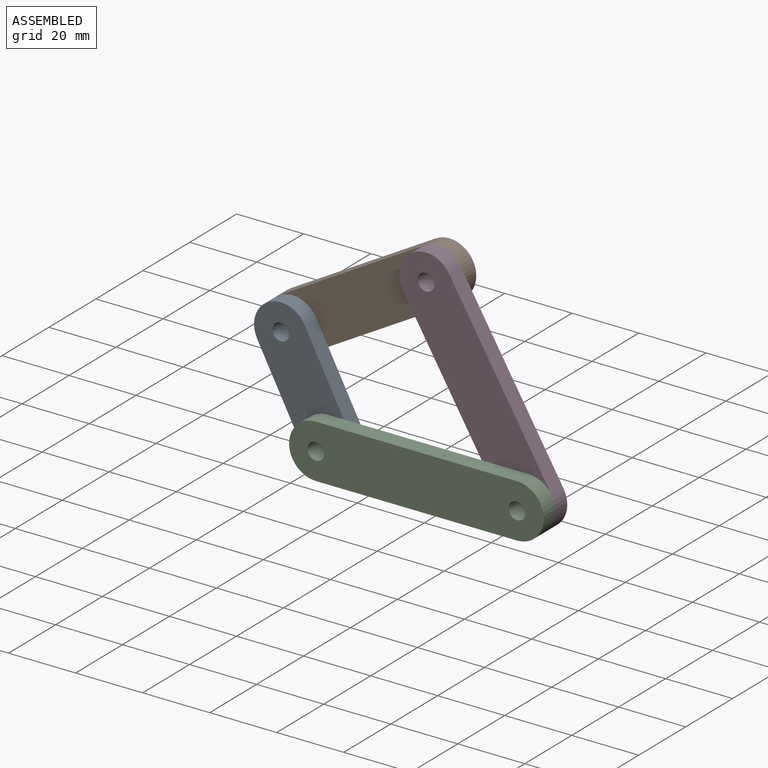
[diagram: assembled view]
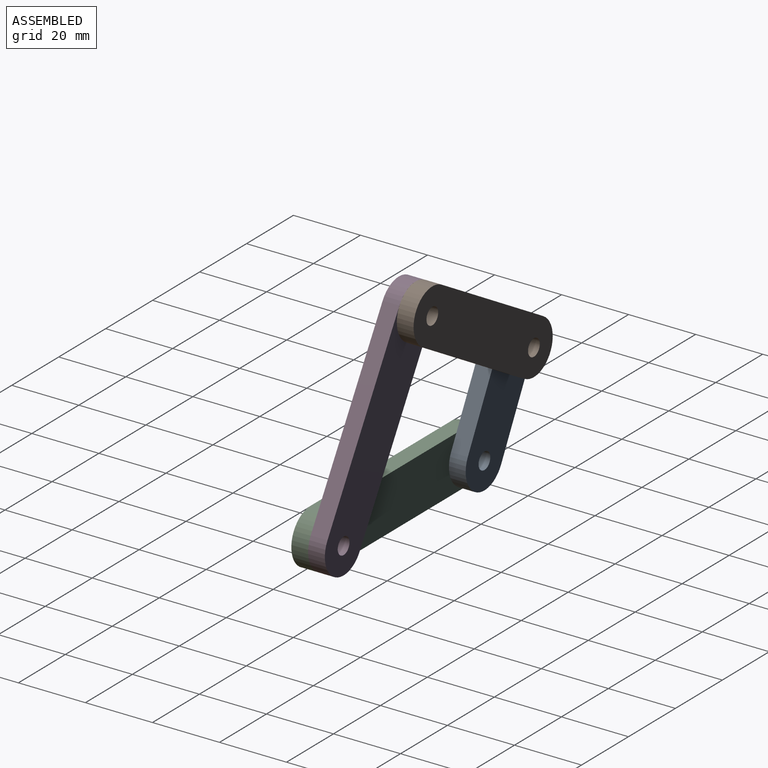
[diagram: assembled view, second angle]
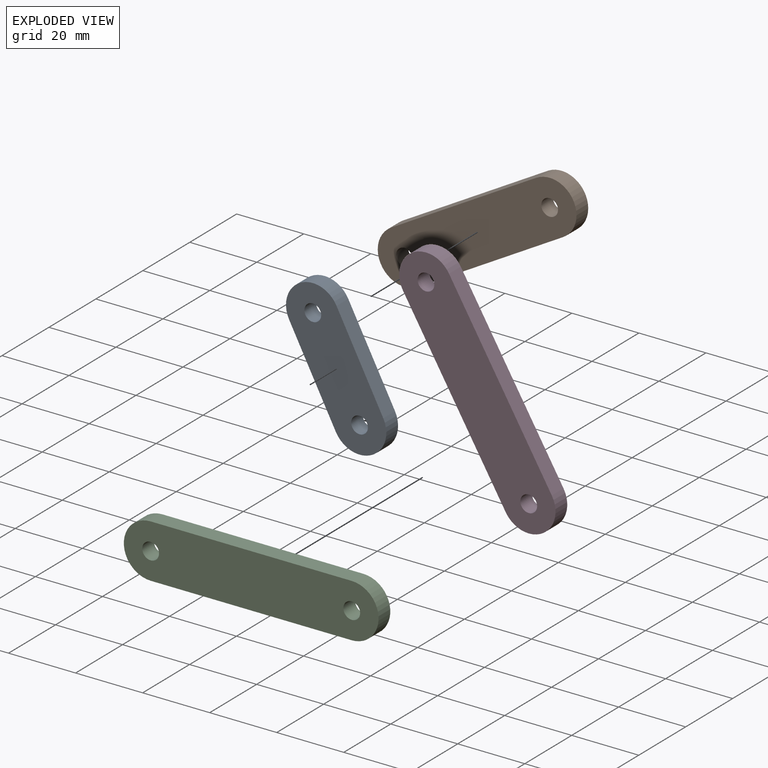
[diagram: exploded view]
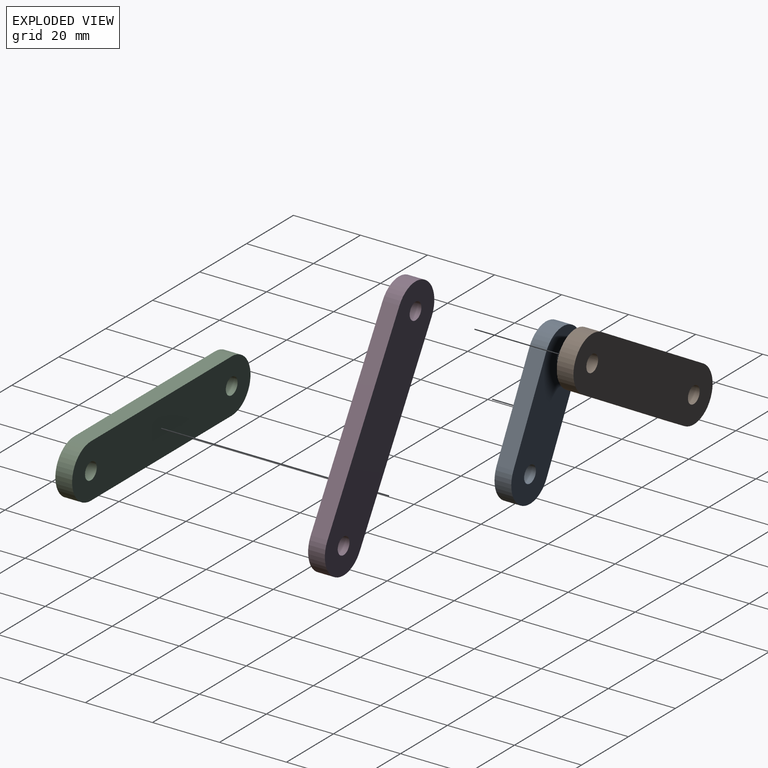
[diagram: exploded view, second angle]
ASSEMBLY  parts=4 mates=7
PART A: 8 faces, bbox 46x5x16 mm
  f0: cylinder r=8mm len=16mm, axis (0,1,0), area 125.7mm2, adj f1,f5,f6,f7
  f1: plane 30x5mm, normal (0,0,-1), area 150mm2, adj f0,f2,f6,f7
  f2: cylinder r=8mm len=16mm, axis (0,1,0), area 125.7mm2, adj f1,f5,f6,f7
  f3: cylinder r=2.5mm len=5mm, axis (0,1,0), area 78.5mm2, adj f6,f7
  f4: cylinder r=2.5mm len=5mm, axis (0,1,0), area 78.5mm2, adj f6,f7
  f5: plane 30x5mm, normal (0,0,1), area 150mm2, adj f0,f2,f6,f7
  f6: plane 46x16mm, normal (0,-1,0), area 641.8mm2, adj f0,f1,f2,f3,f4,f5
  f7: plane 46x16mm, normal (0,1,0), area 641.8mm2, adj f0,f1,f2,f3,f4,f5
PART B: 8 faces, bbox 66x5x16 mm
  f0: cylinder r=8mm len=16mm, axis (0,1,0), area 125.7mm2, adj f1,f5,f6,f7
  f1: plane 50x5mm, normal (0,0,-1), area 250mm2, adj f0,f2,f6,f7
  f2: cylinder r=8mm len=16mm, axis (0,1,0), area 125.7mm2, adj f1,f5,f6,f7
  f3: cylinder r=2.5mm len=5mm, axis (0,1,0), area 78.5mm2, adj f6,f7
  f4: cylinder r=2.5mm len=5mm, axis (0,1,0), area 78.5mm2, adj f6,f7
  f5: plane 50x5mm, normal (0,0,1), area 250mm2, adj f0,f2,f6,f7
  f6: plane 66x16mm, normal (0,-1,0), area 961.8mm2, adj f0,f1,f2,f3,f4,f5
  f7: plane 66x16mm, normal (0,1,0), area 961.8mm2, adj f0,f1,f2,f3,f4,f5
PART C: 8 faces, bbox 76x5x16 mm
  f0: cylinder r=8mm len=16mm, axis (0,1,0), area 125.7mm2, adj f1,f5,f6,f7
  f1: plane 60x5mm, normal (0,0,-1), area 300mm2, adj f0,f2,f6,f7
  f2: cylinder r=8mm len=16mm, axis (0,1,0), area 125.7mm2, adj f1,f5,f6,f7
  f3: cylinder r=2.5mm len=5mm, axis (0,1,0), area 78.5mm2, adj f6,f7
  f4: cylinder r=2.5mm len=5mm, axis (0,1,0), area 78.5mm2, adj f6,f7
  f5: plane 60x5mm, normal (0,0,1), area 300mm2, adj f0,f2,f6,f7
  f6: plane 76x16mm, normal (0,-1,0), area 1121.8mm2, adj f0,f1,f2,f3,f4,f5
  f7: plane 76x16mm, normal (0,1,0), area 1121.8mm2, adj f0,f1,f2,f3,f4,f5
PART D: same geometry as C
PLACE A rot(axis=(0,1,0),62.3deg) t=(-42.19,-8.39,24.74)mm
PLACE B rot(axis=(0,-1,0),30deg) t=(-29.03,-3.39,45.3)mm
PLACE C t=(-3.46,-13.39,8.12)mm fixed
PLACE D rot(axis=(0,1,0),59.3deg) t=(11.21,-8.39,33.91)mm
MATE planar A.f6 <-> C.f7  axis (0,-1,0) through (-40.43,-13.39,21.4)mm
MATE planar B.f2 <-> D.f7  axis (0,-1,0) through (-4.11,-8.39,59.7)mm
MATE planar B.f6 <-> A.f7  axis (0,-1,0) through (-25.76,-8.39,47.19)mm
MATE cylindrical A.f2 <-> C.f0  axis (0,-1,0) through (-33.46,-13.39,8.12)mm
MATE cylindrical B.f0 <-> A.f0  axis (0,-1,0) through (-47.4,-8.39,34.68)mm
MATE cylindrical D.f2 <-> C.f2  axis (0,-1,0) through (26.54,-13.39,8.12)mm
MATE cylindrical B.f2 <-> D.f0  axis (0,-1,0) through (-4.11,-8.39,59.7)mm
